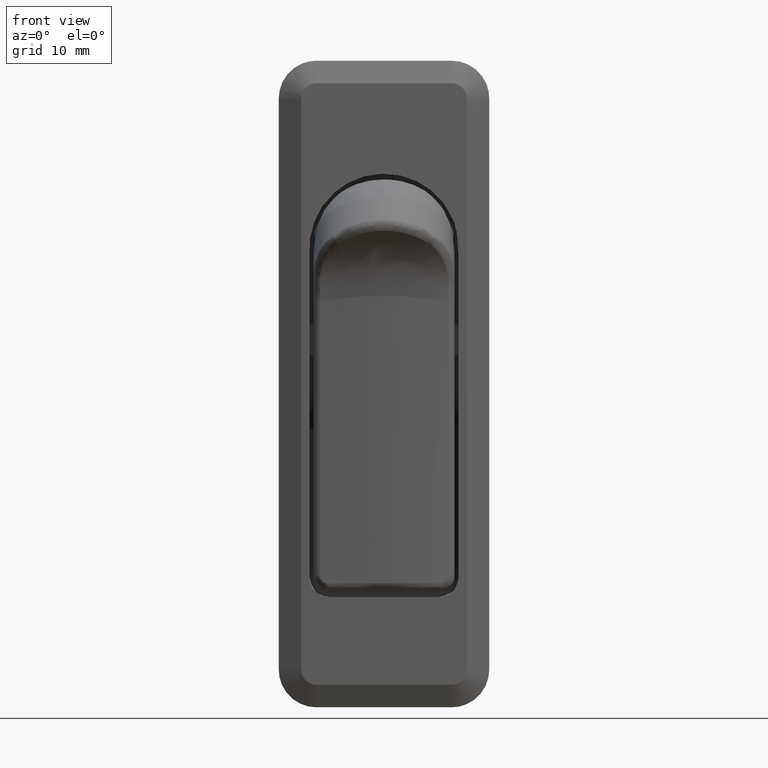
[diagram: clean part render]
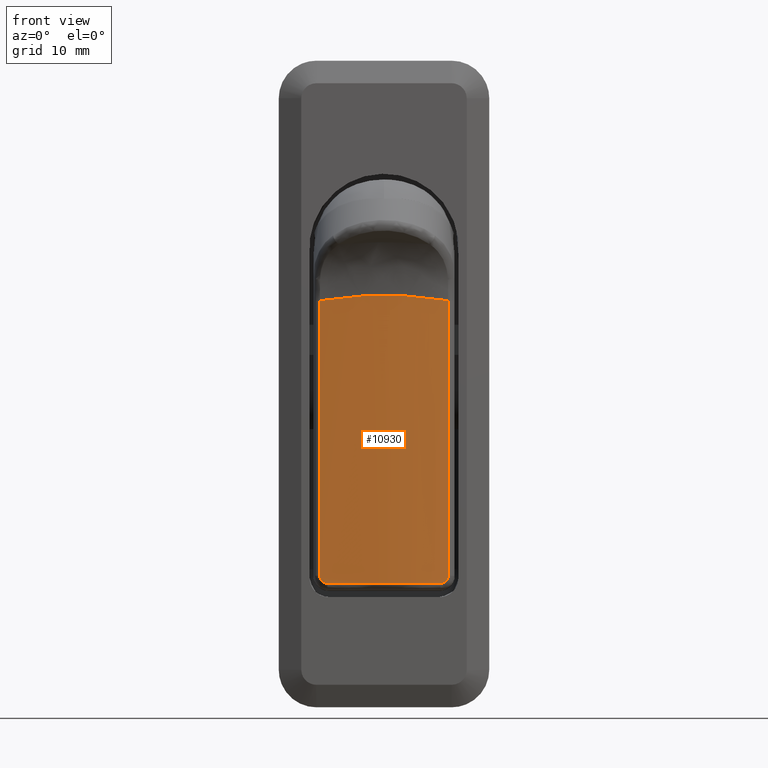
[diagram: same view with one face highlighted and labeled with its STEP entity id]
A machine part, front view. The second image highlights one B-rep face of the part: STEP entity #10930.
In plain terms, the highlighted face is a freeform B-spline surface patch.
Its self-contained STEP definition (entity closure, byte-faithful):
#7962=CARTESIAN_POINT('',(-3.388784084128940,-8.542372881355920,-6.926287130361730));
#7963=VERTEX_POINT('',#7962);
#8018=CARTESIAN_POINT('',(-3.388784084128955,-8.542372881355888,-43.500000261000849));
#8019=VERTEX_POINT('',#8018);
#8041=CARTESIAN_POINT('',(-3.388784084128955,-8.542372881355888,-43.500000261000849));
#8042=CARTESIAN_POINT('',(-3.388784084128940,-8.542372881355920,-6.926287130361730));
#8043=QUASI_UNIFORM_CURVE('',1,(#8041,#8042),.UNSPECIFIED.,.F.,.U.);
#8044=EDGE_CURVE('',#8019,#7963,#8043,.T.);
#8263=CARTESIAN_POINT('',(-3.526194290382000,-7.525423728813521,-44.500000271871500));
#8264=VERTEX_POINT('',#8263);
#8313=CARTESIAN_POINT('',(-3.526194290382000,-7.525423728813521,-44.500000271871500));
#8314=CARTESIAN_POINT('',(-3.517808090444320,-7.591758675295238,-44.500000271227982));
#8315=CARTESIAN_POINT('',(-3.509400447759694,-7.657372279497876,-44.493678430477871));
#8316=CARTESIAN_POINT('',(-3.496766167794172,-7.754720844189981,-44.474791836487412));
#8317=CARTESIAN_POINT('',(-3.492548282240091,-7.787009709292218,-44.466894267282782));
#8318=CARTESIAN_POINT('',(-3.484256580514249,-7.850098115146901,-44.448219848605753));
#8319=CARTESIAN_POINT('',(-3.476071276904029,-7.911988846236172,-44.426620194431329));
#8320=CARTESIAN_POINT('',(-3.468106015457750,-7.971514407268733,-44.399240591667080));
#8321=CARTESIAN_POINT('',(-3.460258687408245,-8.029838844129291,-44.368923721469749));
#8322=CARTESIAN_POINT('',(-3.456378281192871,-8.058515795561331,-44.352220384649947));
#8323=CARTESIAN_POINT('',(-3.445043578592894,-8.141851564260598,-44.298039457399007));
#8324=CARTESIAN_POINT('',(-3.437987405451905,-8.193151093262641,-44.257047787745563));
#8325=CARTESIAN_POINT('',(-3.428188828545272,-8.263821601431566,-44.188369474140941));
#8326=CARTESIAN_POINT('',(-3.425054492954644,-8.286324591980600,-44.164269783483739));
#8327=CARTESIAN_POINT('',(-3.419067442995960,-8.329147672973511,-44.113569110376730));
#8328=CARTESIAN_POINT('',(-3.416226892864632,-8.349380069461958,-44.087039976241350));
#8329=CARTESIAN_POINT('',(-3.408328240985232,-8.405460755331031,-44.005418614067189));
#8330=CARTESIAN_POINT('',(-3.403823511534859,-8.437194467943073,-43.947790054452717));
#8331=CARTESIAN_POINT('',(-3.398270236357160,-8.476170984397607,-43.856440516403786));
#8332=CARTESIAN_POINT('',(-3.396613875825036,-8.487765866892669,-43.824979172835917));
#8333=CARTESIAN_POINT('',(-3.393782529893776,-8.507555825606392,-43.761538482088362));
#8334=CARTESIAN_POINT('',(-3.392602079448869,-8.515789582611093,-43.729526887639480));
#8335=CARTESIAN_POINT('',(-3.389757593032601,-8.535612497806206,-43.632636669977138));
#8336=CARTESIAN_POINT('',(-3.388784084128950,-8.542372881355883,-43.566911288311132));
#8337=CARTESIAN_POINT('',(-3.388784084128950,-8.542372881355888,-43.500000261000849));
#8338=B_SPLINE_CURVE_WITH_KNOTS('',3,(#8313,#8314,#8315,#8316,#8317,#8318,#8319,#8320,#8321,#8322,#8323,#8324,#8325,#8326,#8327,#8328,#8329,#8330,#8331,#8332,#8333,#8334,#8335,#8336,#8337),.UNSPECIFIED.,.F.,.U.,(4,2,2,1,2,2,2,2,2,2,2,2,4),(0.0,0.125000000000000,0.187500000000001,0.250000000000001,0.312500000000002,0.375000000000002,0.500000000000003,0.562499999999999,0.624999999999995,0.749999999999989,0.812499999999991,0.874999999999994,1.0),.UNSPECIFIED.);
#8339=EDGE_CURVE('',#8264,#8019,#8338,.T.);
#8461=CARTESIAN_POINT('',(-3.526194290381990,7.525423728813570,-44.500000271892702));
#8462=VERTEX_POINT('',#8461);
#8494=CARTESIAN_POINT('',(-3.526194290381990,7.525423728813570,-44.500000271892702));
#8495=CARTESIAN_POINT('',(-3.684757539852609,6.271186440677979,-44.500000284653098));
#8496=CARTESIAN_POINT('',(-3.803088144389833,5.016949152542388,-44.500000294191587));
#8497=CARTESIAN_POINT('',(-3.960709512140421,2.508474576271207,-44.500000306897263));
#8498=CARTESIAN_POINT('',(-4.039287279095773,2.341877E-014,-44.500000313231297));
#8499=CARTESIAN_POINT('',(-3.960709512140420,-2.508474576271155,-44.500000306897242));
#8500=CARTESIAN_POINT('',(-3.803088144389833,-5.016949152542336,-44.500000294191580));
#8501=CARTESIAN_POINT('',(-3.684757539852607,-6.271186440677930,-44.500000284653090));
#8502=CARTESIAN_POINT('',(-3.526194290381990,-7.525423728813521,-44.500000271871500));
#8503=B_SPLINE_CURVE_WITH_KNOTS('',3,(#8494,#8495,#8496,#8497,#8498,#8499,#8500,#8501,#8502),.UNSPECIFIED.,.F.,.U.,(4,2,1,2,4),(0.0,0.250000000000000,0.500000000000000,0.750000000000000,1.0),.UNSPECIFIED.);
#8504=EDGE_CURVE('',#8462,#8264,#8503,.T.);
#8708=CARTESIAN_POINT('',(-3.388784084128945,8.542372881355940,-43.500000261000849));
#8709=VERTEX_POINT('',#8708);
#8754=CARTESIAN_POINT('',(-3.388784084128945,8.542372881355940,-43.500000261000849));
#8755=CARTESIAN_POINT('',(-3.388784084128945,8.542372881355938,-43.566919042253268));
#8756=CARTESIAN_POINT('',(-3.389758029190698,8.535609880757997,-43.633089766910949));
#8757=CARTESIAN_POINT('',(-3.393625675903393,8.508655819844480,-43.763946154737113));
#8758=CARTESIAN_POINT('',(-3.396482515569476,8.488719452316841,-43.827178924804052));
#8759=CARTESIAN_POINT('',(-3.402014806033911,8.449888597764740,-43.917963060332333));
#8760=CARTESIAN_POINT('',(-3.404069836834823,8.435434599634636,-43.947596107689492));
#8761=CARTESIAN_POINT('',(-3.408601050145364,8.403463054859568,-44.005588128228617));
#8762=CARTESIAN_POINT('',(-3.411091929812853,8.385840786442110,-44.034078170003383));
#8763=CARTESIAN_POINT('',(-3.419036478004644,8.329427102836824,-44.115862961887132));
#8764=CARTESIAN_POINT('',(-3.424982433205415,8.286950142489944,-44.165957601526408));
#8765=CARTESIAN_POINT('',(-3.438069931455254,8.192552876382695,-44.257563756350791));
#8766=CARTESIAN_POINT('',(-3.445284040852719,8.140092726502877,-44.299303211704839));
#8767=CARTESIAN_POINT('',(-3.460277094810843,8.029841346747029,-44.370739964257531));
#8768=CARTESIAN_POINT('',(-3.468104760612221,7.971708158295836,-44.400908225950637));
#8769=CARTESIAN_POINT('',(-3.480304726290381,7.879981612238073,-44.437816605490383));
#8770=CARTESIAN_POINT('',(-3.484465555916758,7.848514696999688,-44.448744337293803));
#8771=CARTESIAN_POINT('',(-3.492772156017241,7.785299389723739,-44.467341752620548));
#8772=CARTESIAN_POINT('',(-3.496934400213509,7.753428639201198,-44.475073982630512));
#8773=CARTESIAN_POINT('',(-3.509441942495705,7.657044281798063,-44.493677727107062));
#8774=CARTESIAN_POINT('',(-3.517807180258615,7.591765874875518,-44.500000271227883));
#8775=CARTESIAN_POINT('',(-3.526194290381990,7.525423728813570,-44.500000271892702));
#8776=B_SPLINE_CURVE_WITH_KNOTS('',3,(#8754,#8755,#8756,#8757,#8758,#8759,#8760,#8761,#8762,#8763,#8764,#8765,#8766,#8767,#8768,#8769,#8770,#8771,#8772,#8773,#8774,#8775),.UNSPECIFIED.,.F.,.U.,(4,2,2,2,2,2,2,2,2,2,4),(0.0,0.125000000000016,0.250000000000032,0.312500000000033,0.375000000000036,0.500000000000030,0.625000000000025,0.750000000000020,0.812500000000015,0.875000000000010,1.0),.UNSPECIFIED.);
#8777=EDGE_CURVE('',#8709,#8462,#8776,.T.);
#8832=CARTESIAN_POINT('',(-3.388784084128905,8.542372881356171,-6.926287130361770));
#8833=VERTEX_POINT('',#8832);
#8888=CARTESIAN_POINT('',(-3.388784084128905,8.542372881356171,-6.926287130361770));
#8889=CARTESIAN_POINT('',(-3.388784084128945,8.542372881355940,-43.500000261000849));
#8890=QUASI_UNIFORM_CURVE('',1,(#8888,#8889),.UNSPECIFIED.,.F.,.U.);
#8891=EDGE_CURVE('',#8833,#8709,#8890,.T.);
#10556=CARTESIAN_POINT('',(-3.388784084128939,-8.542372881355933,-6.926287130361711));
#10557=CARTESIAN_POINT('',(-4.617503169696017,1.318390E-013,-5.492782457589343));
#10558=CARTESIAN_POINT('',(-3.388784084128905,8.542372881356171,-6.926287130361770));
#10566=(BOUNDED_CURVE()B_SPLINE_CURVE(2,(#10556,#10557,#10558),.UNSPECIFIED.,.F.,.U.)CURVE()GEOMETRIC_REPRESENTATION_ITEM()QUASI_UNIFORM_CURVE()RATIONAL_B_SPLINE_CURVE((1.0,0.989813094808508,1.0))REPRESENTATION_ITEM(''));
#10567=EDGE_CURVE('',#7963,#8833,#10566,.T.);
#10908=CARTESIAN_POINT('',(-3.261476060548880,9.384948852759285,-5.256034326063855));
#10909=CARTESIAN_POINT('',(-3.261476060548880,9.384948852759285,-45.481099459664293));
#10910=CARTESIAN_POINT('',(-4.747850618967134,-0.000797844147491,-5.256034326063855));
#10911=CARTESIAN_POINT('',(-4.747850618967134,-0.000797844147491,-45.481099459664286));
#10912=CARTESIAN_POINT('',(-3.261229521873975,-9.386505494617275,-5.256034326063854));
#10913=CARTESIAN_POINT('',(-3.261229521873975,-9.386505494617275,-45.481099459664286));
#10921=(BOUNDED_SURFACE()B_SPLINE_SURFACE(1,2,((#10908,#10910,#10912),(#10909,#10911,#10913)),.UNSPECIFIED.,.F.,.F.,.U.)B_SPLINE_SURFACE_WITH_KNOTS((2,2),(3,3),(0.0,40.225065133600431),(0.0,18.887710965898570),.UNSPECIFIED.)GEOMETRIC_REPRESENTATION_ITEM()RATIONAL_B_SPLINE_SURFACE(((0.997953309271110,0.984714430866851,0.996023848700106),(0.997953309271110,0.984714430866851,0.996023848700106)))REPRESENTATION_ITEM('')SURFACE());
#10922=ORIENTED_EDGE('',*,*,#8339,.T.);
#10923=ORIENTED_EDGE('',*,*,#8044,.T.);
#10924=ORIENTED_EDGE('',*,*,#10567,.T.);
#10925=ORIENTED_EDGE('',*,*,#8891,.T.);
#10926=ORIENTED_EDGE('',*,*,#8777,.T.);
#10927=ORIENTED_EDGE('',*,*,#8504,.T.);
#10928=EDGE_LOOP('',(#10922,#10923,#10924,#10925,#10926,#10927));
#10929=FACE_OUTER_BOUND('',#10928,.T.);
#10930=ADVANCED_FACE('',(#10929),#10921,.T.);